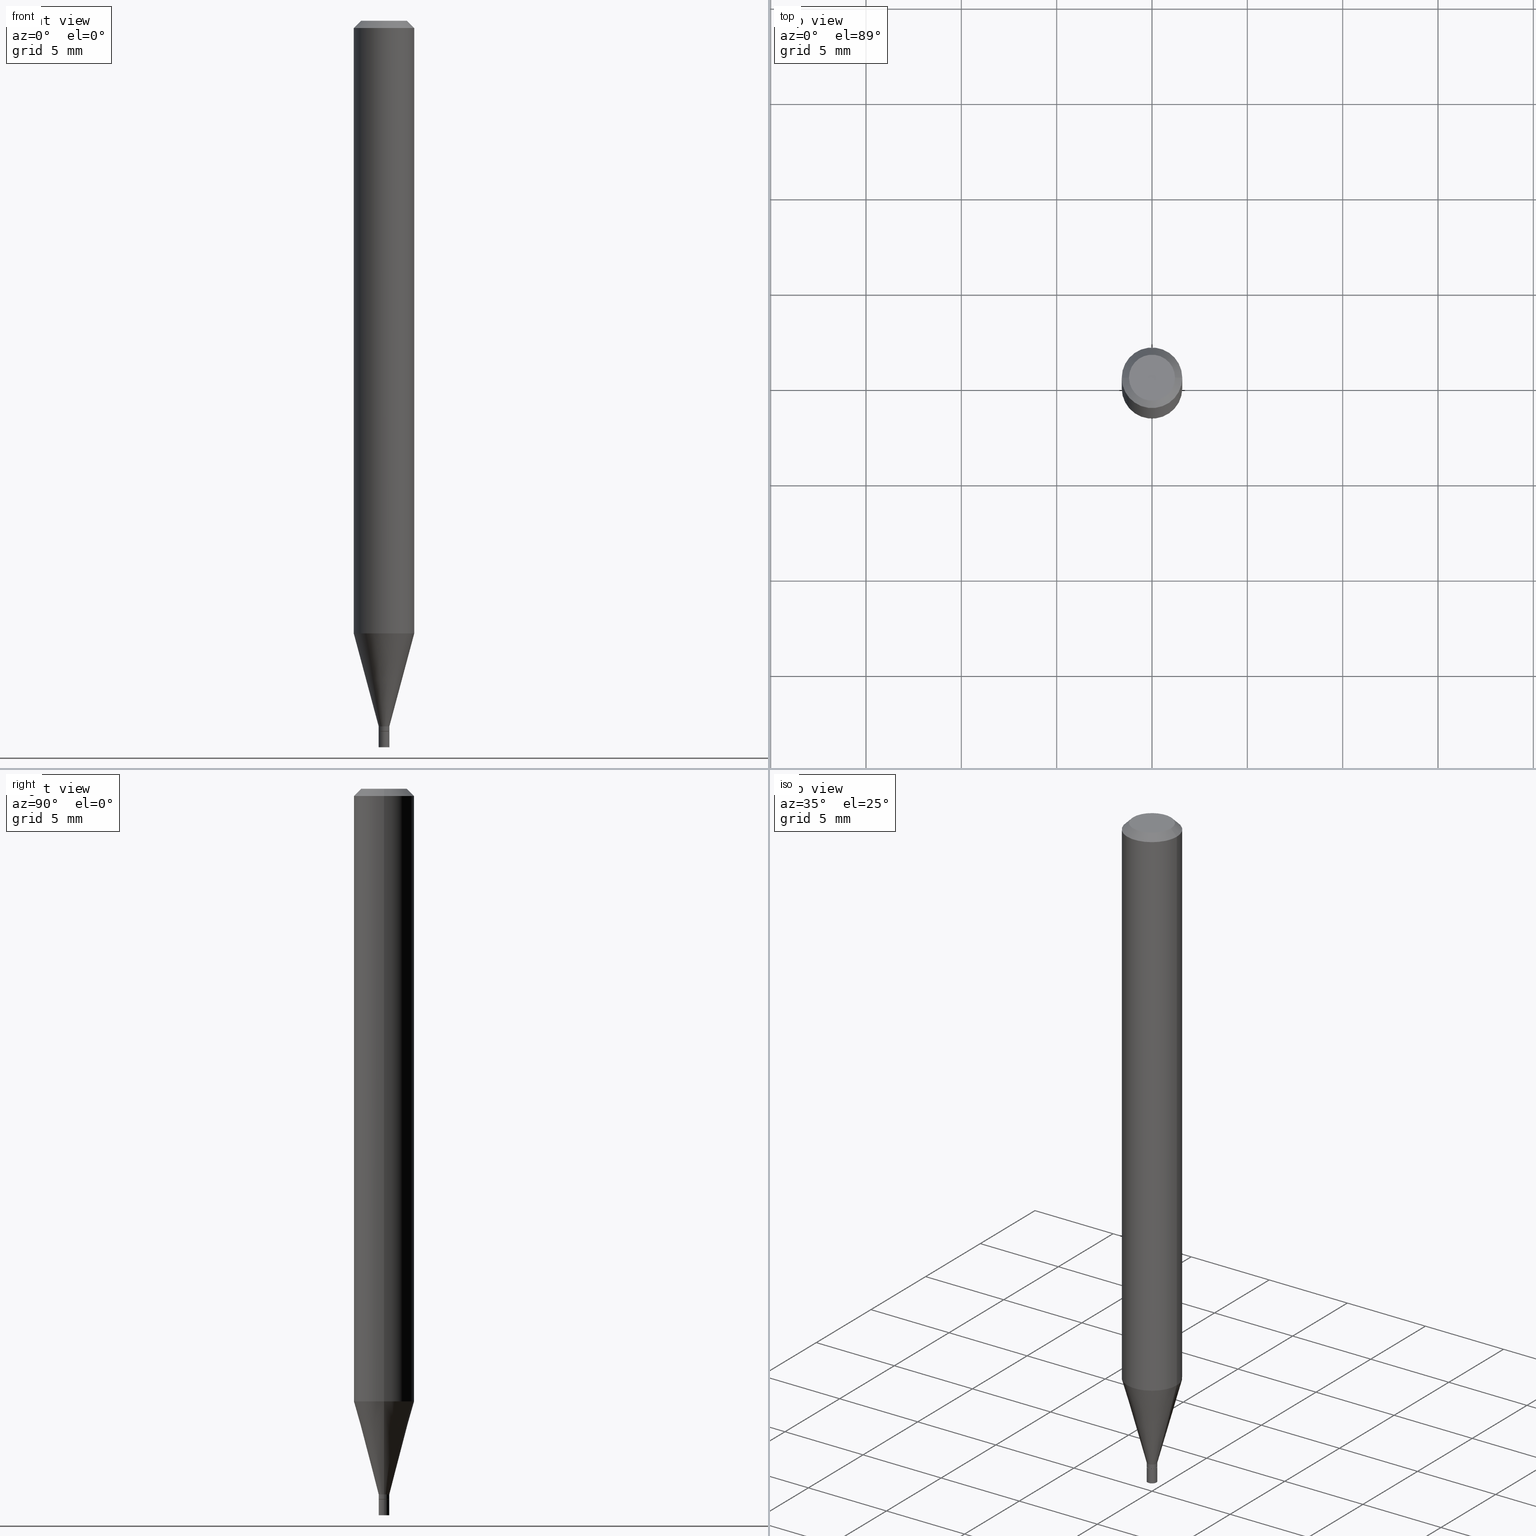
[diagram: canonical four-view strip — front | top / right | iso, engineering-drawing reading convention]
A machine part, canonical four-view strip (front | top / right | iso — engineering-drawing reading convention). The complete STEP part file that produces these views, byte-faithful:
ISO-10303-21;
HEADER;
FILE_DESCRIPTION (( 'STEP AP203' ),
    '1' );
FILE_NAME ('02218.STEP',
    '2024-03-18T19:54:51',
    ( '' ),
    ( '' ),
    'SwSTEP 2.0',
    'SolidWorks 2023',
    '' );
FILE_SCHEMA (( 'CONFIG_CONTROL_DESIGN' ));
ENDSEC;

DATA;
#1 = ADVANCED_FACE ( 'NONE', ( #16 ), #424, .T. ) ;
#2 = DATE_TIME_ROLE ( 'classification_date' ) ;
#3 = DESIGN_CONTEXT ( 'detailed design', #114, 'design' ) ;
#4 = ORIENTED_EDGE ( 'NONE', *, *, #172, .T. ) ;
#5 = DIRECTION ( 'NONE',  ( 1.000000000000000000, -6.982962677686265922E-15, 4.876176775795935793E-29 ) ) ;
#6 = ORIENTED_EDGE ( 'NONE', *, *, #43, .F. ) ;
#7 = CARTESIAN_POINT ( 'NONE',  ( 0.01099999999999999936, -7.681258945454891804E-17, 5.363794453375529652E-31 ) ) ;
#8 = CONICAL_SURFACE ( 'NONE', #378, 0.06250000000000000000, 0.7853981633974268517 ) ;
#9 = ORIENTED_EDGE ( 'NONE', *, *, #305, .T. ) ;
#10 = APPROVAL_PERSON_ORGANIZATION ( #174, #72, #400 ) ;
#11 = DIRECTION ( 'NONE',  ( -2.445468806185136597E-29, 3.491481338843145583E-15, 1.000000000000000000 ) ) ;
#12 = MANIFOLD_SOLID_BREP ( 'Body-Move/Copy2[2]', #302 ) ;
#13 = ORIENTED_EDGE ( 'NONE', *, *, #64, .T. ) ;
#14 = ADVANCED_FACE ( 'NONE', ( #57 ), #342, .F. ) ;
#15 = ADVANCED_FACE ( 'NONE', ( #294 ), #466, .F. ) ;
#16 = FACE_OUTER_BOUND ( 'NONE', #191, .T. ) ;
#17 = CYLINDRICAL_SURFACE ( 'NONE', #54, 0.01099999999999999936 ) ;
#18 = DIRECTION ( 'NONE',  ( -2.445468806185136597E-29, 3.491481338843145583E-15, 1.000000000000000000 ) ) ;
#19 = CARTESIAN_POINT ( 'NONE',  ( 0.01049999999999999892, -5.195324232198601302E-15, -1.467000000000000304 ) ) ;
#20 = AXIS2_PLACEMENT_3D ( 'NONE', #350, #173, #428 ) ;
#21 = CARTESIAN_POINT ( 'NONE',  ( -1.575719463841376315E-44, 2.249709785436367094E-30, 6.443424916547820620E-16 ) ) ;
#22 = DIRECTION ( 'NONE',  ( -2.445468806185136877E-29, 3.491481338843145188E-15, 1.000000000000000000 ) ) ;
#23 = CARTESIAN_POINT ( 'NONE',  ( -0.01099999999999992130, -4.490431422233914869E-15, -1.457000000000000073 ) ) ;
#24 = ORIENTED_EDGE ( 'NONE', *, *, #83, .F. ) ;
#25 = EDGE_CURVE ( 'NONE', #352, #115, #403, .T. ) ;
#26 = PERSON_AND_ORGANIZATION_ROLE ( 'creator' ) ;
#27 = DIRECTION ( 'NONE',  ( -2.445468806185136597E-29, 3.491481338843145583E-15, 1.000000000000000000 ) ) ;
#28 = CIRCLE ( 'NONE', #297, 0.06250000000000000000 ) ;
#29 = ORIENTED_EDGE ( 'NONE', *, *, #198, .T. ) ;
#30 = CC_DESIGN_APPROVAL ( #237, ( #197 ) ) ;
#31 = PERSON_AND_ORGANIZATION ( #121, #379 ) ;
#32 = CARTESIAN_POINT ( 'NONE',  ( 3.093027438211846075E-29, -4.416023444557040885E-15, -1.264799383410203149 ) ) ;
#33 = PERSON_AND_ORGANIZATION ( #121, #379 ) ;
#34 = DIRECTION ( 'NONE',  ( 2.445468806185136597E-29, -3.491481338843145583E-15, -1.000000000000000000 ) ) ;
#35 = CALENDAR_DATE ( 2024, 18, 3 ) ;
#36 = DIRECTION ( 'NONE',  ( 1.000000000000000000, -6.982962677686266711E-15, 0.000000000000000000 ) ) ;
#37 = ADVANCED_FACE ( 'NONE', ( #391 ), #8, .T. ) ;
#38 = PERSON_AND_ORGANIZATION ( #121, #379 ) ;
#39 = CIRCLE ( 'NONE', #255, 0.01049999999999999892 ) ;
#40 = DIRECTION ( 'NONE',  ( -2.445468806185136597E-29, 3.491481338843145583E-15, 1.000000000000000000 ) ) ;
#41 = ORIENTED_EDGE ( 'NONE', *, *, #422, .T. ) ;
#42 = DIRECTION ( 'NONE',  ( 1.000000000000000000, -6.982962677686245411E-15, 0.000000000000000000 ) ) ;
#43 = EDGE_CURVE ( 'NONE', #265, #81, #179, .T. ) ;
#44 = ORIENTED_EDGE ( 'NONE', *, *, #59, .T. ) ;
#45 = FACE_OUTER_BOUND ( 'NONE', #401, .T. ) ;
#46 = VECTOR ( 'NONE', #451, 39.37007874015748143 ) ;
#47 = ORIENTED_EDGE ( 'NONE', *, *, #288, .T. ) ;
#48 = LINE ( 'NONE', #444, #46 ) ;
#49 = EDGE_LOOP ( 'NONE', ( #262, #124 ) ) ;
#50 = ADVANCED_FACE ( 'NONE', ( #138 ), #264, .T. ) ;
#51 = EDGE_CURVE ( 'NONE', #365, #456, #251, .T. ) ;
#52 = VECTOR ( 'NONE', #310, 39.37007874015748143 ) ;
#53 = CIRCLE ( 'NONE', #413, 0.06250000000000000000 ) ;
#54 = AXIS2_PLACEMENT_3D ( 'NONE', #301, #411, #132 ) ;
#55 = ORIENTED_EDGE ( 'NONE', *, *, #371, .F. ) ;
#56 = CARTESIAN_POINT ( 'NONE',  ( -0.01049999999999999892, -5.047396136828084806E-15, -1.467000000000000304 ) ) ;
#57 = FACE_OUTER_BOUND ( 'NONE', #295, .T. ) ;
#58 = DIRECTION ( 'NONE',  ( -2.445468806185136597E-29, 3.491481338843145583E-15, 1.000000000000000000 ) ) ;
#59 = EDGE_CURVE ( 'NONE', #290, #267, #92, .T. ) ;
#60 = CARTESIAN_POINT ( 'NONE',  ( 0.06250000000000000000, -4.364351673553916694E-16, 3.047610484872459871E-30 ) ) ;
#61 = CIRCLE ( 'NONE', #425, 0.01099999999999992130 ) ;
#62 =( LENGTH_UNIT ( ) NAMED_UNIT ( * ) SI_UNIT ( $, .METRE. ) );
#63 = CARTESIAN_POINT ( 'NONE',  ( 3.563048050611744147E-29, -5.087088310694462559E-15, -1.457000000000000073 ) ) ;
#64 = EDGE_CURVE ( 'NONE', #290, #149, #308, .T. ) ;
#65 = COORDINATED_UNIVERSAL_TIME_OFFSET ( 5, 0, .BEHIND. ) ;
#66 = CARTESIAN_POINT ( 'NONE',  ( 3.093027438211846075E-29, -4.416023444557040885E-15, -1.264799383410203149 ) ) ;
#67 = EDGE_CURVE ( 'NONE', #127, #365, #279, .T. ) ;
#68 = VERTEX_POINT ( 'NONE', #316 ) ;
#69 = DATE_AND_TIME ( #224, #333 ) ;
#70 = CARTESIAN_POINT ( 'NONE',  ( 0.04749999999999999362, -4.035134999187566790E-16, 6.443424916547846258E-16 ) ) ;
#71 = CONICAL_SURFACE ( 'NONE', #322, 0.01099999999999992130, 0.2617993877991500740 ) ;
#72 = APPROVAL ( #178, 'UNSPECIFIED' ) ;
#73 = ORIENTED_EDGE ( 'NONE', *, *, #155, .T. ) ;
#74 = CIRCLE ( 'NONE', #415, 0.01099999999999999936 ) ;
#75 = CYLINDRICAL_SURFACE ( 'NONE', #356, 0.06250000000000000000 ) ;
#76 = ADVANCED_BREP_SHAPE_REPRESENTATION ( '02218', ( #320, #12, #194 ), #118 ) ;
#77 = CARTESIAN_POINT ( 'NONE',  ( 0.01099999999999999936, -5.314034597719267489E-15, -1.500000000000000222 ) ) ;
#78 = VERTEX_POINT ( 'NONE', #460 ) ;
#79 = DIRECTION ( 'NONE',  ( 1.000000000000000000, -6.982962677686287221E-15, 0.000000000000000000 ) ) ;
#80 = AXIS2_PLACEMENT_3D ( 'NONE', #397, #344, #457 ) ;
#81 = VERTEX_POINT ( 'NONE', #169 ) ;
#82 = DIRECTION ( 'NONE',  ( 1.000000000000000000, -6.982962677686266711E-15, 4.876176775795935793E-29 ) ) ;
#83 = EDGE_CURVE ( 'NONE', #78, #68, #278, .T. ) ;
#84 = ORIENTED_EDGE ( 'NONE', *, *, #131, .T. ) ;
#85 = DIRECTION ( 'NONE',  ( -2.445468806185136597E-29, 3.491481338843145583E-15, 1.000000000000000000 ) ) ;
#86 = ORIENTED_EDGE ( 'NONE', *, *, #387, .F. ) ;
#87 = DIRECTION ( 'NONE',  ( -2.445468806185136597E-29, 3.491481338843145583E-15, 1.000000000000000000 ) ) ;
#88 = AXIS2_PLACEMENT_3D ( 'NONE', #399, #40, #192 ) ;
#89 = ORIENTED_EDGE ( 'NONE', *, *, #336, .F. ) ;
#90 = ORIENTED_EDGE ( 'NONE', *, *, #125, .T. ) ;
#91 = APPLICATION_CONTEXT ( 'configuration controlled 3d designs of mechanical parts and assemblies' ) ;
#92 = CIRCLE ( 'NONE', #216, 0.01099999999999999936 ) ;
#93 = EDGE_CURVE ( 'NONE', #78, #365, #445, .T. ) ;
#94 = CARTESIAN_POINT ( 'NONE',  ( 3.587502738673595692E-29, -5.122003124082895786E-15, -1.467000000000000304 ) ) ;
#95 = APPLICATION_PROTOCOL_DEFINITION ( 'international standard', 'config_control_design', 1994, #91 ) ;
#96 =( CONVERSION_BASED_UNIT ( 'INCH', #381 ) LENGTH_UNIT ( ) NAMED_UNIT ( #154 ) );
#97 = DIRECTION ( 'NONE',  ( -1.000000000000000000, 6.982962677686266711E-15, 0.000000000000000000 ) ) ;
#98 = ORIENTED_EDGE ( 'NONE', *, *, #64, .F. ) ;
#99 = FACE_OUTER_BOUND ( 'NONE', #437, .T. ) ;
#100 = CARTESIAN_POINT ( 'NONE',  ( -0.06250000000000000000, 4.440892098500626162E-16, -3.074334431409316114E-30 ) ) ;
#101 = VECTOR ( 'NONE', #153, 39.37007874015748143 ) ;
#102 = DATE_AND_TIME ( #389, #242 ) ;
#103 = ADVANCED_FACE ( 'NONE', ( #209 ), #171, .F. ) ;
#104 = DIRECTION ( 'NONE',  ( -2.445468806185136597E-29, 3.491481338843145583E-15, 1.000000000000000000 ) ) ;
#105 = DIRECTION ( 'NONE',  ( 0.7071067811865642261, -2.468850131082431399E-15, 0.7071067811865309194 ) ) ;
#106 = COORDINATED_UNIVERSAL_TIME_OFFSET ( 5, 0, .BEHIND. ) ;
#107 = DIRECTION ( 'NONE',  ( 1.000000000000000000, -6.982962677686266711E-15, 4.876176775795935793E-29 ) ) ;
#108 = CIRCLE ( 'NONE', #270, 0.01099999999999992130 ) ;
#109 = PERSON_AND_ORGANIZATION ( #121, #379 ) ;
#110 = CARTESIAN_POINT ( 'NONE',  ( 0.000000000000000000, 0.000000000000000000, 0.000000000000000000 ) ) ;
#111 = CC_DESIGN_PERSON_AND_ORGANIZATION_ASSIGNMENT ( #38, #398, ( #257 ) ) ;
#112 = ORIENTED_EDGE ( 'NONE', *, *, #436, .F. ) ;
#113 = CARTESIAN_POINT ( 'NONE',  ( 3.563048050611744147E-29, -5.087088310694462559E-15, -1.457000000000000073 ) ) ;
#114 = APPLICATION_CONTEXT ( 'configuration controlled 3d designs of mechanical parts and assemblies' ) ;
#115 = VERTEX_POINT ( 'NONE', #70 ) ;
#116 = FACE_OUTER_BOUND ( 'NONE', #156, .T. ) ;
#117 = VECTOR ( 'NONE', #384, 39.37007874015748143 ) ;
#118 =( GEOMETRIC_REPRESENTATION_CONTEXT ( 3 ) GLOBAL_UNCERTAINTY_ASSIGNED_CONTEXT ( ( #353 ) ) GLOBAL_UNIT_ASSIGNED_CONTEXT ( ( #96, #165, #196 ) ) REPRESENTATION_CONTEXT ( 'NONE', 'WORKASPACE' ) );
#119 = ORIENTED_EDGE ( 'NONE', *, *, #155, .F. ) ;
#120 = DIRECTION ( 'NONE',  ( -2.445468806185136597E-29, 3.491481338843145583E-15, 1.000000000000000000 ) ) ;
#121 = PERSON ( 'UNSPECIFIED', 'UNSPECIFIED', 'UNSPECIFIED', ('UNSPECIFIED'), ('UNSPECIFIED'), ('UNSPECIFIED') ) ;
#122 = ORIENTED_EDGE ( 'NONE', *, *, #172, .F. ) ;
#123 = DIRECTION ( 'NONE',  ( 1.000000000000000000, -6.982962677686266711E-15, 4.876176775795935793E-29 ) ) ;
#124 = ORIENTED_EDGE ( 'NONE', *, *, #227, .F. ) ;
#125 = EDGE_CURVE ( 'NONE', #81, #127, #366, .T. ) ;
#126 = CONICAL_SURFACE ( 'NONE', #184, 0.06250000000000000000, 0.7853981633974268517 ) ;
#127 = VERTEX_POINT ( 'NONE', #23 ) ;
#128 = CARTESIAN_POINT ( 'NONE',  ( 0.000000000000000000, 0.000000000000000000, 0.000000000000000000 ) ) ;
#129 = CC_DESIGN_APPROVAL ( #141, ( #257 ) ) ;
#130 = DIRECTION ( 'NONE',  ( -0.2588190451025213501, 5.211531920934551042E-15, 0.9659258262890682012 ) ) ;
#131 = EDGE_CURVE ( 'NONE', #195, #434, #236, .T. ) ;
#132 = DIRECTION ( 'NONE',  ( 1.000000000000000000, -6.982962677686265922E-15, 4.876176775795936353E-29 ) ) ;
#133 = PRODUCT ( '02218', '02218', '', ( #343 ) ) ;
#134 = DIRECTION ( 'NONE',  ( 2.438088387897960049E-29, -3.491481338843145188E-15, -1.000000000000000000 ) ) ;
#135 = LINE ( 'NONE', #420, #229 ) ;
#136 = EDGE_CURVE ( 'NONE', #238, #127, #281, .T. ) ;
#137 = AXIS2_PLACEMENT_3D ( 'NONE', #151, #240, #418 ) ;
#138 = FACE_OUTER_BOUND ( 'NONE', #328, .T. ) ;
#139 = VECTOR ( 'NONE', #250, 39.37007874015748143 ) ;
#140 = ORIENTED_EDGE ( 'NONE', *, *, #83, .T. ) ;
#141 = APPROVAL ( #427, 'UNSPECIFIED' ) ;
#142 = DIRECTION ( 'NONE',  ( 1.000000000000000000, -6.982962677686267499E-15, 4.852736867747366768E-29 ) ) ;
#143 = PERSON_AND_ORGANIZATION_ROLE ( 'classification_officer' ) ;
#144 = DIRECTION ( 'NONE',  ( 1.000000000000000000, -6.982962677686262766E-15, 0.000000000000000000 ) ) ;
#145 = DIRECTION ( 'NONE',  ( -2.445468806185136597E-29, 3.491481338843145583E-15, 1.000000000000000000 ) ) ;
#146 = CC_DESIGN_DATE_AND_TIME_ASSIGNMENT ( #284, #254, ( #197 ) ) ;
#147 = CIRCLE ( 'NONE', #168, 0.06250000000000000000 ) ;
#148 = COORDINATED_UNIVERSAL_TIME_OFFSET ( 5, 0, .BEHIND. ) ;
#149 = VERTEX_POINT ( 'NONE', #206 ) ;
#150 = CYLINDRICAL_SURFACE ( 'NONE', #404, 0.01099999999999999936 ) ;
#151 = CARTESIAN_POINT ( 'NONE',  ( 3.587502738673595692E-29, -5.122003124082895786E-15, -1.467000000000000304 ) ) ;
#152 = ORIENTED_EDGE ( 'NONE', *, *, #368, .F. ) ;
#153 = DIRECTION ( 'NONE',  ( -2.445468806185136877E-29, 3.491481338843145188E-15, 1.000000000000000000 ) ) ;
#154 = DIMENSIONAL_EXPONENTS ( 1.000000000000000000, 0.000000000000000000, 0.000000000000000000, 0.000000000000000000, 0.000000000000000000, 0.000000000000000000, 0.000000000000000000 ) ;
#155 = EDGE_CURVE ( 'NONE', #365, #78, #147, .T. ) ;
#156 = EDGE_LOOP ( 'NONE', ( #300, #345, #375, #119 ) ) ;
#157 = CARTESIAN_POINT ( 'NONE',  ( 3.586280004270504012E-29, -5.120257383413474282E-15, -1.466500000000000359 ) ) ;
#158 = CONICAL_SURFACE ( 'NONE', #332, 0.01099999999999992130, 0.2617993877991500740 ) ;
#159 = ORIENTED_EDGE ( 'NONE', *, *, #51, .F. ) ;
#160 = CARTESIAN_POINT ( 'NONE',  ( 3.668203209277705088E-31, -5.237222008264718399E-17, -0.01499999999999999944 ) ) ;
#161 = ORIENTED_EDGE ( 'NONE', *, *, #351, .F. ) ;
#162 = CARTESIAN_POINT ( 'NONE',  ( -0.06250000000000000000, -3.971934234706977480E-15, -1.264799383410203149 ) ) ;
#163 = AXIS2_PLACEMENT_3D ( 'NONE', #414, #58, #349 ) ;
#164 = ORIENTED_EDGE ( 'NONE', *, *, #436, .T. ) ;
#165 =( NAMED_UNIT ( * ) PLANE_ANGLE_UNIT ( ) SI_UNIT ( $, .RADIAN. ) );
#166 = CARTESIAN_POINT ( 'NONE',  ( 3.316907271900976096E-16, 0.04749999999999999362, 1.563258822323416346E-16 ) ) ;
#167 = ORIENTED_EDGE ( 'NONE', *, *, #288, .F. ) ;
#168 = AXIS2_PLACEMENT_3D ( 'NONE', #66, #27, #144 ) ;
#169 = CARTESIAN_POINT ( 'NONE',  ( 0.01099999999999992130, -5.163900900149011871E-15, -1.457000000000000073 ) ) ;
#170 = APPLICATION_PROTOCOL_DEFINITION ( 'international standard', 'config_control_design', 1994, #114 ) ;
#171 = PLANE ( 'NONE',  #175 ) ;
#172 = EDGE_CURVE ( 'NONE', #195, #265, #176, .T. ) ;
#173 = DIRECTION ( 'NONE',  ( -2.445468806185136597E-29, 3.491481338843145583E-15, 1.000000000000000000 ) ) ;
#174 = PERSON_AND_ORGANIZATION ( #121, #379 ) ;
#175 = AXIS2_PLACEMENT_3D ( 'NONE', #452, #134, #423 ) ;
#176 = LINE ( 'NONE', #19, #249 ) ;
#177 = APPROVAL_PERSON_ORGANIZATION ( #309, #237, #222 ) ;
#178 = APPROVAL_STATUS ( 'not_yet_approved' ) ;
#179 = LINE ( 'NONE', #245, #52 ) ;
#180 = EDGE_LOOP ( 'NONE', ( #464, #458 ) ) ;
#181 = COORDINATED_UNIVERSAL_TIME_OFFSET ( 5, 0, .BEHIND. ) ;
#182 = DIRECTION ( 'NONE',  ( -1.000000000000000000, 6.982962677686266711E-15, 0.000000000000000000 ) ) ;
#183 = DIRECTION ( 'NONE',  ( 0.2588190451025213501, 1.565188264969621968E-15, 0.9659258262890682012 ) ) ;
#184 = AXIS2_PLACEMENT_3D ( 'NONE', #221, #34, #182 ) ;
#185 = ADVANCED_FACE ( 'NONE', ( #253 ), #393, .T. ) ;
#186 = EDGE_LOOP ( 'NONE', ( #189, #269, #441, #439 ) ) ;
#187 = CARTESIAN_POINT ( 'NONE',  ( 3.576687321579069994E-29, -5.368277968210015545E-15, -1.500000000000000222 ) ) ;
#188 = ADVANCED_FACE ( 'NONE', ( #438 ), #287, .F. ) ;
#189 = ORIENTED_EDGE ( 'NONE', *, *, #360, .F. ) ;
#190 = CARTESIAN_POINT ( 'NONE',  ( -0.01099999999999999936, -5.101452865240196680E-15, -1.500000000000000222 ) ) ;
#191 = EDGE_LOOP ( 'NONE', ( #55, #298, #4, #152 ) ) ;
#192 = DIRECTION ( 'NONE',  ( 1.000000000000000000, -6.982962677686245411E-15, 0.000000000000000000 ) ) ;
#193 = CIRCLE ( 'NONE', #303, 0.01099999999999999936 ) ;
#194 = AXIS2_PLACEMENT_3D ( 'NONE', #449, #274, #447 ) ;
#195 = VERTEX_POINT ( 'NONE', #293 ) ;
#196 =( NAMED_UNIT ( * ) SI_UNIT ( $, .STERADIAN. ) SOLID_ANGLE_UNIT ( ) );
#197 = PRODUCT_DEFINITION ( 'UNKNOWN', '', #257, #3 ) ;
#198 = EDGE_CURVE ( 'NONE', #68, #456, #53, .T. ) ;
#199 = AXIS2_PLACEMENT_3D ( 'NONE', #354, #104, #142 ) ;
#200 = AXIS2_PLACEMENT_3D ( 'NONE', #128, #18, #340 ) ;
#201 = ORIENTED_EDGE ( 'NONE', *, *, #341, .T. ) ;
#202 = VECTOR ( 'NONE', #130, 39.37007874015747433 ) ;
#203 = ADVANCED_FACE ( 'NONE', ( #45 ), #71, .T. ) ;
#204 = LINE ( 'NONE', #56, #346 ) ;
#205 = CYLINDRICAL_SURFACE ( 'NONE', #200, 0.01099999999999992130 ) ;
#206 = CARTESIAN_POINT ( 'NONE',  ( -0.01099999999999999936, -5.101452865240196680E-15, -1.467000000000000304 ) ) ;
#207 = PERSON_AND_ORGANIZATION ( #121, #379 ) ;
#208 = EDGE_CURVE ( 'NONE', #456, #68, #28, .T. ) ;
#209 = FACE_OUTER_BOUND ( 'NONE', #382, .T. ) ;
#210 = ORIENTED_EDGE ( 'NONE', *, *, #25, .T. ) ;
#211 = PERSON_AND_ORGANIZATION_ROLE ( 'design_owner' ) ;
#212 = DIRECTION ( 'NONE',  ( 1.000000000000000000, -6.982962677686295110E-15, 0.000000000000000000 ) ) ;
#213 = ORIENTED_EDGE ( 'NONE', *, *, #93, .F. ) ;
#214 = DIRECTION ( 'NONE',  ( -2.445468806185136597E-29, 3.491481338843145583E-15, 1.000000000000000000 ) ) ;
#215 = DATE_AND_TIME ( #289, #374 ) ;
#216 = AXIS2_PLACEMENT_3D ( 'NONE', #283, #454, #388 ) ;
#217 = DIRECTION ( 'NONE',  ( 1.000000000000000000, -6.982962677686262766E-15, 0.000000000000000000 ) ) ;
#218 = SECURITY_CLASSIFICATION ( '', '', #220 ) ;
#219 = EDGE_LOOP ( 'NONE', ( #334, #372, #29, #86 ) ) ;
#220 = SECURITY_CLASSIFICATION_LEVEL ( 'unclassified' ) ;
#221 = CARTESIAN_POINT ( 'NONE',  ( 3.668203209277705088E-31, -5.237222008264718399E-17, -0.01499999999999999944 ) ) ;
#222 = APPROVAL_ROLE ( '' ) ;
#223 = LINE ( 'NONE', #318, #395 ) ;
#224 = CALENDAR_DATE ( 2024, 18, 3 ) ;
#225 = ORIENTED_EDGE ( 'NONE', *, *, #136, .T. ) ;
#226 = DIRECTION ( 'NONE',  ( -2.445468806185136597E-29, 3.491481338843145583E-15, 1.000000000000000000 ) ) ;
#227 = EDGE_CURVE ( 'NONE', #434, #195, #39, .T. ) ;
#228 = AXIS2_PLACEMENT_3D ( 'NONE', #94, #307, #446 ) ;
#229 = VECTOR ( 'NONE', #335, 39.37007874015748143 ) ;
#230 = ORIENTED_EDGE ( 'NONE', *, *, #351, .T. ) ;
#231 = CARTESIAN_POINT ( 'NONE',  ( 3.668203209277704895E-29, -5.237222008264718177E-15, -1.500000000000000222 ) ) ;
#232 = ORIENTED_EDGE ( 'NONE', *, *, #51, .T. ) ;
#233 = DIRECTION ( 'NONE',  ( 1.000000000000000000, -6.982962677686295110E-15, 0.000000000000000000 ) ) ;
#234 = EDGE_LOOP ( 'NONE', ( #369, #232, #292, #24 ) ) ;
#235 = CARTESIAN_POINT ( 'NONE',  ( 3.587502738673595692E-29, -5.122003124082895786E-15, -1.467000000000000304 ) ) ;
#236 = CIRCLE ( 'NONE', #20, 0.01049999999999999892 ) ;
#237 = APPROVAL ( #459, 'UNSPECIFIED' ) ;
#238 = VERTEX_POINT ( 'NONE', #299 ) ;
#239 = ORIENTED_EDGE ( 'NONE', *, *, #371, .T. ) ;
#240 = DIRECTION ( 'NONE',  ( -2.438088387897960049E-29, 3.491481338843145188E-15, 1.000000000000000000 ) ) ;
#241 = DIRECTION ( 'NONE',  ( 1.000000000000000000, -6.982962677686295110E-15, 0.000000000000000000 ) ) ;
#242 = LOCAL_TIME ( 15, 54, 51.00000000000000000, #359 ) ;
#243 = CC_DESIGN_DATE_AND_TIME_ASSIGNMENT ( #317, #2, ( #218 ) ) ;
#244 = FACE_OUTER_BOUND ( 'NONE', #330, .T. ) ;
#245 = CARTESIAN_POINT ( 'NONE',  ( 0.01099999999999992130, -7.681258945454838802E-17, 5.363794453375491117E-31 ) ) ;
#246 = CARTESIAN_POINT ( 'NONE',  ( -0.04749999999999999362, 3.578768372314221846E-16, 6.443424916547796954E-16 ) ) ;
#247 = CLOSED_SHELL ( 'NONE', ( #252, #188, #433, #103 ) ) ;
#248 = CC_DESIGN_PERSON_AND_ORGANIZATION_ASSIGNMENT ( #207, #211, ( #133 ) ) ;
#249 = VECTOR ( 'NONE', #105, 39.37007874015748143 ) ;
#250 = DIRECTION ( 'NONE',  ( -2.445468806185136877E-29, 3.491481338843145188E-15, 1.000000000000000000 ) ) ;
#251 = LINE ( 'NONE', #100, #139 ) ;
#252 = ADVANCED_FACE ( 'NONE', ( #432 ), #150, .T. ) ;
#253 = FACE_OUTER_BOUND ( 'NONE', #407, .T. ) ;
#254 = DATE_TIME_ROLE ( 'creation_date' ) ;
#255 = AXIS2_PLACEMENT_3D ( 'NONE', #362, #462, #79 ) ;
#256 = DIRECTION ( 'NONE',  ( -2.445468806185136597E-29, 3.491481338843145583E-15, 1.000000000000000000 ) ) ;
#257 = PRODUCT_DEFINITION_FORMATION_WITH_SPECIFIED_SOURCE ( 'ANY', '', #133, .NOT_KNOWN. ) ;
#258 = CARTESIAN_POINT ( 'NONE',  ( 3.563048050611744147E-29, -5.087088310694462559E-15, -1.457000000000000073 ) ) ;
#259 = ADVANCED_FACE ( 'NONE', ( #116 ), #158, .T. ) ;
#260 = ORIENTED_EDGE ( 'NONE', *, *, #208, .F. ) ;
#261 = DIRECTION ( 'NONE',  ( -2.438088387897960049E-29, 3.491481338843145188E-15, 1.000000000000000000 ) ) ;
#262 = ORIENTED_EDGE ( 'NONE', *, *, #131, .F. ) ;
#263 = CARTESIAN_POINT ( 'NONE',  ( 0.000000000000000000, 0.000000000000000000, 0.000000000000000000 ) ) ;
#264 = CONICAL_SURFACE ( 'NONE', #80, 0.01049999999999999892, 0.7853981633974718157 ) ;
#265 = VERTEX_POINT ( 'NONE', #367 ) ;
#266 = FACE_OUTER_BOUND ( 'NONE', #234, .T. ) ;
#267 = VERTEX_POINT ( 'NONE', #77 ) ;
#268 = CARTESIAN_POINT ( 'NONE',  ( 0.01099999999999999936, -5.198815713537444309E-15, -1.467000000000000304 ) ) ;
#269 = ORIENTED_EDGE ( 'NONE', *, *, #25, .F. ) ;
#270 = AXIS2_PLACEMENT_3D ( 'NONE', #157, #408, #241 ) ;
#271 = EDGE_CURVE ( 'NONE', #127, #81, #61, .T. ) ;
#272 = VECTOR ( 'NONE', #22, 39.37007874015748143 ) ;
#273 = ORIENTED_EDGE ( 'NONE', *, *, #125, .F. ) ;
#274 = DIRECTION ( 'NONE',  ( 0.000000000000000000, 0.000000000000000000, 1.000000000000000000 ) ) ;
#275 = APPROVAL_PERSON_ORGANIZATION ( #31, #141, #324 ) ;
#276 = DIRECTION ( 'NONE',  ( 2.438088387897960049E-29, -3.491481338843145188E-15, -1.000000000000000000 ) ) ;
#277 = CARTESIAN_POINT ( 'NONE',  ( -0.06250000000000000000, -1.790108622469781169E-15, -0.01499999999999999944 ) ) ;
#278 = LINE ( 'NONE', #60, #272 ) ;
#279 = LINE ( 'NONE', #348, #202 ) ;
#280 = CIRCLE ( 'NONE', #313, 0.04749999999999999362 ) ;
#281 = LINE ( 'NONE', #358, #385 ) ;
#282 = ORIENTED_EDGE ( 'NONE', *, *, #136, .F. ) ;
#283 = CARTESIAN_POINT ( 'NONE',  ( 3.668203209277704895E-29, -5.237222008264718177E-15, -1.500000000000000222 ) ) ;
#284 = DATE_AND_TIME ( #363, #357 ) ;
#285 = DIRECTION ( 'NONE',  ( -2.445468806185136597E-29, 3.491481338843145583E-15, 1.000000000000000000 ) ) ;
#286 = AXIS2_PLACEMENT_3D ( 'NONE', #450, #285, #107 ) ;
#287 = PLANE ( 'NONE',  #455 ) ;
#288 = EDGE_CURVE ( 'NONE', #267, #325, #323, .T. ) ;
#289 = CALENDAR_DATE ( 2024, 18, 3 ) ;
#290 = VERTEX_POINT ( 'NONE', #190 ) ;
#291 = FACE_OUTER_BOUND ( 'NONE', #186, .T. ) ;
#292 = ORIENTED_EDGE ( 'NONE', *, *, #198, .F. ) ;
#293 = CARTESIAN_POINT ( 'NONE',  ( 0.01049999999999999892, -5.195324232198601302E-15, -1.467000000000000304 ) ) ;
#294 = FACE_OUTER_BOUND ( 'NONE', #49, .T. ) ;
#295 = EDGE_LOOP ( 'NONE', ( #210, #41 ) ) ;
#296 = DIRECTION ( 'NONE',  ( 1.000000000000000000, -6.982962677686295110E-15, 0.000000000000000000 ) ) ;
#297 = AXIS2_PLACEMENT_3D ( 'NONE', #160, #145, #36 ) ;
#298 = ORIENTED_EDGE ( 'NONE', *, *, #227, .T. ) ;
#299 = CARTESIAN_POINT ( 'NONE',  ( -0.01099999999999992130, -5.042097682479863192E-15, -1.466500000000000359 ) ) ;
#300 = ORIENTED_EDGE ( 'NONE', *, *, #67, .F. ) ;
#301 = CARTESIAN_POINT ( 'NONE',  ( 0.000000000000000000, 0.000000000000000000, 0.000000000000000000 ) ) ;
#302 = CLOSED_SHELL ( 'NONE', ( #185, #50, #37, #312, #203, #259, #338, #327, #14, #15, #1, #406 ) ) ;
#303 = AXIS2_PLACEMENT_3D ( 'NONE', #231, #370, #42 ) ;
#304 = CC_DESIGN_PERSON_AND_ORGANIZATION_ASSIGNMENT ( #315, #26, ( #257 ) ) ;
#305 = EDGE_CURVE ( 'NONE', #325, #149, #463, .T. ) ;
#306 = CIRCLE ( 'NONE', #163, 0.01099999999999992130 ) ;
#307 = DIRECTION ( 'NONE',  ( -2.445468806185136597E-29, 3.491481338843145583E-15, 1.000000000000000000 ) ) ;
#308 = LINE ( 'NONE', #429, #117 ) ;
#309 = PERSON_AND_ORGANIZATION ( #121, #379 ) ;
#310 = DIRECTION ( 'NONE',  ( -2.445468806185136877E-29, 3.491481338843145188E-15, 1.000000000000000000 ) ) ;
#311 = CARTESIAN_POINT ( 'NONE',  ( 3.668203209277705088E-31, -5.237222008264718399E-17, -0.01499999999999999944 ) ) ;
#312 = ADVANCED_FACE ( 'NONE', ( #266 ), #75, .T. ) ;
#313 = AXIS2_PLACEMENT_3D ( 'NONE', #21, #87, #416 ) ;
#314 = DIRECTION ( 'NONE',  ( 2.445468806185136597E-29, -3.491481338843145583E-15, -1.000000000000000000 ) ) ;
#315 = PERSON_AND_ORGANIZATION ( #121, #379 ) ;
#316 = CARTESIAN_POINT ( 'NONE',  ( 0.06250000000000000000, -4.888073874380388472E-16, -0.01499999999999999944 ) ) ;
#317 = DATE_AND_TIME ( #35, #396 ) ;
#318 = CARTESIAN_POINT ( 'NONE',  ( 0.01099999999999992130, -5.163900900149011871E-15, -1.457000000000000073 ) ) ;
#319 = PERSON_AND_ORGANIZATION_ROLE ( 'creator' ) ;
#320 = MANIFOLD_SOLID_BREP ( 'Body-Move/Copy2[1]', #247 ) ;
#321 = ORIENTED_EDGE ( 'NONE', *, *, #67, .T. ) ;
#322 = AXIS2_PLACEMENT_3D ( 'NONE', #113, #226, #402 ) ;
#323 = LINE ( 'NONE', #7, #101 ) ;
#324 = APPROVAL_ROLE ( '' ) ;
#325 = VERTEX_POINT ( 'NONE', #268 ) ;
#326 = DIRECTION ( 'NONE',  ( -2.445468806185136597E-29, 3.491481338843145583E-15, 1.000000000000000000 ) ) ;
#327 = ADVANCED_FACE ( 'NONE', ( #291 ), #126, .T. ) ;
#328 = EDGE_LOOP ( 'NONE', ( #84, #239, #161, #122 ) ) ;
#329 = CARTESIAN_POINT ( 'NONE',  ( 3.668203209277705088E-31, -5.237222008264718399E-17, -0.01499999999999999944 ) ) ;
#330 = EDGE_LOOP ( 'NONE', ( #282, #410, #383, #412 ) ) ;
#331 = DIRECTION ( 'NONE',  ( 1.000000000000000000, -6.982962677686266711E-15, 0.000000000000000000 ) ) ;
#332 = AXIS2_PLACEMENT_3D ( 'NONE', #361, #120, #233 ) ;
#333 = LOCAL_TIME ( 15, 54, 51.00000000000000000, #65 ) ;
#334 = ORIENTED_EDGE ( 'NONE', *, *, #422, .F. ) ;
#335 = DIRECTION ( 'NONE',  ( -0.7071067811865323627, 2.468850131082098105E-15, -0.7071067811865626718 ) ) ;
#336 = EDGE_CURVE ( 'NONE', #81, #78, #223, .T. ) ;
#337 = PRODUCT_DEFINITION_SHAPE ( 'NONE', 'NONE',  #197 ) ;
#338 = ADVANCED_FACE ( 'NONE', ( #465 ), #435, .T. ) ;
#339 = AXIS2_PLACEMENT_3D ( 'NONE', #63, #214, #212 ) ;
#340 = DIRECTION ( 'NONE',  ( 1.000000000000000000, -6.982962677686266711E-15, 4.876176775795935793E-29 ) ) ;
#341 = EDGE_CURVE ( 'NONE', #267, #290, #193, .T. ) ;
#342 = PLANE ( 'NONE',  #364 ) ;
#343 = MECHANICAL_CONTEXT ( 'NONE', #91, 'mechanical' ) ;
#344 = DIRECTION ( 'NONE',  ( -2.445468806185136597E-29, 3.491481338843145583E-15, 1.000000000000000000 ) ) ;
#345 = ORIENTED_EDGE ( 'NONE', *, *, #271, .T. ) ;
#346 = VECTOR ( 'NONE', #380, 39.37007874015748143 ) ;
#347 = PRODUCT_RELATED_PRODUCT_CATEGORY ( 'detail', '', ( #133 ) ) ;
#348 = CARTESIAN_POINT ( 'NONE',  ( -0.01099999999999992130, -5.008928609760852258E-15, -1.457000000000000073 ) ) ;
#349 = DIRECTION ( 'NONE',  ( 1.000000000000000000, -6.982962677686295110E-15, 0.000000000000000000 ) ) ;
#350 = CARTESIAN_POINT ( 'NONE',  ( 3.587502738673595692E-29, -5.122003124082895786E-15, -1.467000000000000304 ) ) ;
#351 = EDGE_CURVE ( 'NONE', #265, #238, #108, .T. ) ;
#352 = VERTEX_POINT ( 'NONE', #246 ) ;
#353 = UNCERTAINTY_MEASURE_WITH_UNIT (LENGTH_MEASURE( 1.000000000000000082E-05 ), #96, 'distance_accuracy_value', 'NONE');
#354 = CARTESIAN_POINT ( 'NONE',  ( -1.575719463841376315E-44, 2.249709785436367094E-30, 6.443424916547820620E-16 ) ) ;
#355 = APPROVAL_DATE_TIME ( #102, #237 ) ;
#356 = AXIS2_PLACEMENT_3D ( 'NONE', #442, #326, #123 ) ;
#357 = LOCAL_TIME ( 15, 54, 51.00000000000000000, #181 ) ;
#358 = CARTESIAN_POINT ( 'NONE',  ( -0.01099999999999992130, 7.815970093361046124E-17, -5.410828599280358539E-31 ) ) ;
#359 = COORDINATED_UNIVERSAL_TIME_OFFSET ( 5, 0, .BEHIND. ) ;
#360 = EDGE_CURVE ( 'NONE', #115, #68, #48, .T. ) ;
#361 = CARTESIAN_POINT ( 'NONE',  ( 3.563048050611744147E-29, -5.087088310694462559E-15, -1.457000000000000073 ) ) ;
#362 = CARTESIAN_POINT ( 'NONE',  ( 3.587502738673595692E-29, -5.122003124082895786E-15, -1.467000000000000304 ) ) ;
#363 = CALENDAR_DATE ( 2024, 18, 3 ) ;
#364 = AXIS2_PLACEMENT_3D ( 'NONE', #166, #276, #417 ) ;
#365 = VERTEX_POINT ( 'NONE', #162 ) ;
#366 = CIRCLE ( 'NONE', #339, 0.01099999999999992130 ) ;
#367 = CARTESIAN_POINT ( 'NONE',  ( 0.01099999999999992130, -5.197069972868022806E-15, -1.466500000000000359 ) ) ;
#368 = EDGE_CURVE ( 'NONE', #238, #265, #306, .T. ) ;
#369 = ORIENTED_EDGE ( 'NONE', *, *, #93, .T. ) ;
#370 = DIRECTION ( 'NONE',  ( -2.445468806185136597E-29, 3.491481338843145583E-15, 1.000000000000000000 ) ) ;
#371 = EDGE_CURVE ( 'NONE', #434, #238, #204, .T. ) ;
#372 = ORIENTED_EDGE ( 'NONE', *, *, #360, .T. ) ;
#373 = DIRECTION ( 'NONE',  ( -2.445468806185136597E-29, 3.491481338843145583E-15, 1.000000000000000000 ) ) ;
#374 = LOCAL_TIME ( 15, 54, 51.00000000000000000, #148 ) ;
#375 = ORIENTED_EDGE ( 'NONE', *, *, #336, .T. ) ;
#376 = DIRECTION ( 'NONE',  ( -2.445468806185136597E-29, 3.491481338843145583E-15, 1.000000000000000000 ) ) ;
#377 = ORIENTED_EDGE ( 'NONE', *, *, #305, .F. ) ;
#378 = AXIS2_PLACEMENT_3D ( 'NONE', #311, #314, #97 ) ;
#379 = ORGANIZATION ( 'UNSPECIFIED', 'UNSPECIFIED', '' ) ;
#380 = DIRECTION ( 'NONE',  ( -0.7071067811865642261, 7.493145998870414114E-15, 0.7071067811865309194 ) ) ;
#381 = LENGTH_MEASURE_WITH_UNIT ( LENGTH_MEASURE( 0.02539999999999999897 ), #62 );
#382 = EDGE_LOOP ( 'NONE', ( #9, #164 ) ) ;
#383 = ORIENTED_EDGE ( 'NONE', *, *, #43, .T. ) ;
#384 = DIRECTION ( 'NONE',  ( -2.445468806185136877E-29, 3.491481338843145188E-15, 1.000000000000000000 ) ) ;
#385 = VECTOR ( 'NONE', #426, 39.37007874015748143 ) ;
#386 = DIRECTION ( 'NONE',  ( 1.000000000000000000, -6.982962677686245411E-15, 0.000000000000000000 ) ) ;
#387 = EDGE_CURVE ( 'NONE', #352, #456, #135, .T. ) ;
#388 = DIRECTION ( 'NONE',  ( 1.000000000000000000, -6.982962677686245411E-15, 0.000000000000000000 ) ) ;
#389 = CALENDAR_DATE ( 2024, 18, 3 ) ;
#390 = CC_DESIGN_PERSON_AND_ORGANIZATION_ASSIGNMENT ( #33, #319, ( #197 ) ) ;
#391 = FACE_OUTER_BOUND ( 'NONE', #219, .T. ) ;
#392 = APPROVAL_DATE_TIME ( #69, #141 ) ;
#393 = CYLINDRICAL_SURFACE ( 'NONE', #286, 0.01099999999999992130 ) ;
#394 = SHAPE_DEFINITION_REPRESENTATION ( #337, #76 ) ;
#395 = VECTOR ( 'NONE', #183, 39.37007874015747433 ) ;
#396 = LOCAL_TIME ( 15, 54, 51.00000000000000000, #106 ) ;
#397 = CARTESIAN_POINT ( 'NONE',  ( 3.587502738673595692E-29, -5.122003124082895786E-15, -1.467000000000000304 ) ) ;
#398 = PERSON_AND_ORGANIZATION_ROLE ( 'design_supplier' ) ;
#399 = CARTESIAN_POINT ( 'NONE',  ( 3.587502738673595692E-29, -5.122003124082895786E-15, -1.467000000000000304 ) ) ;
#400 = APPROVAL_ROLE ( '' ) ;
#401 = EDGE_LOOP ( 'NONE', ( #90, #321, #213, #89 ) ) ;
#402 = DIRECTION ( 'NONE',  ( 1.000000000000000000, -6.982962677686295110E-15, 0.000000000000000000 ) ) ;
#403 = CIRCLE ( 'NONE', #199, 0.04749999999999999362 ) ;
#404 = AXIS2_PLACEMENT_3D ( 'NONE', #110, #85, #440 ) ;
#405 = DIRECTION ( 'NONE',  ( -2.445468806185136597E-29, 3.491481338843145583E-15, 1.000000000000000000 ) ) ;
#406 = ADVANCED_FACE ( 'NONE', ( #244 ), #205, .T. ) ;
#407 = EDGE_LOOP ( 'NONE', ( #230, #225, #273, #6 ) ) ;
#408 = DIRECTION ( 'NONE',  ( -2.445468806185136597E-29, 3.491481338843145583E-15, 1.000000000000000000 ) ) ;
#409 = CC_DESIGN_PERSON_AND_ORGANIZATION_ASSIGNMENT ( #109, #143, ( #218 ) ) ;
#410 = ORIENTED_EDGE ( 'NONE', *, *, #368, .T. ) ;
#411 = DIRECTION ( 'NONE',  ( -2.445468806185136597E-29, 3.491481338843145583E-15, 1.000000000000000000 ) ) ;
#412 = ORIENTED_EDGE ( 'NONE', *, *, #271, .F. ) ;
#413 = AXIS2_PLACEMENT_3D ( 'NONE', #329, #373, #331 ) ;
#414 = CARTESIAN_POINT ( 'NONE',  ( 3.586280004270504012E-29, -5.120257383413474282E-15, -1.466500000000000359 ) ) ;
#415 = AXIS2_PLACEMENT_3D ( 'NONE', #235, #376, #386 ) ;
#416 = DIRECTION ( 'NONE',  ( 1.000000000000000000, -6.982962677686267499E-15, 4.852736867747366768E-29 ) ) ;
#417 = DIRECTION ( 'NONE',  ( -1.000000000000000000, 6.982962677686265922E-15, -4.876176775795935793E-29 ) ) ;
#418 = DIRECTION ( 'NONE',  ( 1.000000000000000000, -6.982962677686265922E-15, 4.876176775795935793E-29 ) ) ;
#419 = EDGE_LOOP ( 'NONE', ( #159, #73, #140, #260 ) ) ;
#420 = CARTESIAN_POINT ( 'NONE',  ( -0.06250000000000000000, 3.840629472727444916E-16, -0.01499999999999999944 ) ) ;
#421 = CC_DESIGN_APPROVAL ( #72, ( #218 ) ) ;
#422 = EDGE_CURVE ( 'NONE', #115, #352, #280, .T. ) ;
#423 = DIRECTION ( 'NONE',  ( -1.000000000000000000, 6.982962677686265922E-15, -4.876176775795935793E-29 ) ) ;
#424 = CONICAL_SURFACE ( 'NONE', #228, 0.01049999999999999892, 0.7853981633974718157 ) ;
#425 = AXIS2_PLACEMENT_3D ( 'NONE', #258, #11, #296 ) ;
#426 = DIRECTION ( 'NONE',  ( -2.445468806185136877E-29, 3.491481338843145188E-15, 1.000000000000000000 ) ) ;
#427 = APPROVAL_STATUS ( 'not_yet_approved' ) ;
#428 = DIRECTION ( 'NONE',  ( 1.000000000000000000, -6.982962677686287221E-15, 0.000000000000000000 ) ) ;
#429 = CARTESIAN_POINT ( 'NONE',  ( -0.01099999999999999936, 7.815970093361101591E-17, -5.410828599280396199E-31 ) ) ;
#430 = APPROVAL_DATE_TIME ( #215, #72 ) ;
#431 = AXIS2_PLACEMENT_3D ( 'NONE', #32, #256, #217 ) ;
#432 = FACE_OUTER_BOUND ( 'NONE', #443, .T. ) ;
#433 = ADVANCED_FACE ( 'NONE', ( #99 ), #17, .T. ) ;
#434 = VERTEX_POINT ( 'NONE', #453 ) ;
#435 = CYLINDRICAL_SURFACE ( 'NONE', #448, 0.06250000000000000000 ) ;
#436 = EDGE_CURVE ( 'NONE', #149, #325, #74, .T. ) ;
#437 = EDGE_LOOP ( 'NONE', ( #98, #44, #47, #112 ) ) ;
#438 = FACE_OUTER_BOUND ( 'NONE', #180, .T. ) ;
#439 = ORIENTED_EDGE ( 'NONE', *, *, #208, .T. ) ;
#440 = DIRECTION ( 'NONE',  ( 1.000000000000000000, -6.982962677686265922E-15, 4.876176775795936353E-29 ) ) ;
#441 = ORIENTED_EDGE ( 'NONE', *, *, #387, .T. ) ;
#442 = CARTESIAN_POINT ( 'NONE',  ( 0.000000000000000000, 0.000000000000000000, 0.000000000000000000 ) ) ;
#443 = EDGE_LOOP ( 'NONE', ( #201, #13, #377, #167 ) ) ;
#444 = CARTESIAN_POINT ( 'NONE',  ( 0.06250000000000000000, -4.811533449433679005E-16, -0.01499999999999999944 ) ) ;
#445 = CIRCLE ( 'NONE', #431, 0.06250000000000000000 ) ;
#446 = DIRECTION ( 'NONE',  ( 1.000000000000000000, -6.982962677686287221E-15, 0.000000000000000000 ) ) ;
#447 = DIRECTION ( 'NONE',  ( 1.000000000000000000, 0.000000000000000000, 0.000000000000000000 ) ) ;
#448 = AXIS2_PLACEMENT_3D ( 'NONE', #263, #405, #82 ) ;
#449 = CARTESIAN_POINT ( 'NONE',  ( 0.000000000000000000, 0.000000000000000000, 0.000000000000000000 ) ) ;
#450 = CARTESIAN_POINT ( 'NONE',  ( 0.000000000000000000, 0.000000000000000000, 0.000000000000000000 ) ) ;
#451 = DIRECTION ( 'NONE',  ( 0.7071067811865323627, -7.319954787623203981E-15, -0.7071067811865626718 ) ) ;
#452 = CARTESIAN_POINT ( 'NONE',  ( 7.681258945458479888E-17, 0.01099999999999487672, -1.467000000000000304 ) ) ;
#453 = CARTESIAN_POINT ( 'NONE',  ( -0.01049999999999999892, -5.044746909653973604E-15, -1.467000000000000304 ) ) ;
#454 = DIRECTION ( 'NONE',  ( -2.445468806185136597E-29, 3.491481338843145583E-15, 1.000000000000000000 ) ) ;
#455 = AXIS2_PLACEMENT_3D ( 'NONE', #187, #261, #5 ) ;
#456 = VERTEX_POINT ( 'NONE', #277 ) ;
#457 = DIRECTION ( 'NONE',  ( 1.000000000000000000, -6.982962677686287221E-15, 0.000000000000000000 ) ) ;
#458 = ORIENTED_EDGE ( 'NONE', *, *, #59, .F. ) ;
#459 = APPROVAL_STATUS ( 'not_yet_approved' ) ;
#460 = CARTESIAN_POINT ( 'NONE',  ( 0.06250000000000000000, -4.852458611912431766E-15, -1.264799383410203149 ) ) ;
#461 = CC_DESIGN_SECURITY_CLASSIFICATION ( #218, ( #257 ) ) ;
#462 = DIRECTION ( 'NONE',  ( -2.445468806185136597E-29, 3.491481338843145583E-15, 1.000000000000000000 ) ) ;
#463 = CIRCLE ( 'NONE', #88, 0.01099999999999999936 ) ;
#464 = ORIENTED_EDGE ( 'NONE', *, *, #341, .F. ) ;
#465 = FACE_OUTER_BOUND ( 'NONE', #419, .T. ) ;
#466 = PLANE ( 'NONE',  #137 ) ;
ENDSEC;
END-ISO-10303-21;
